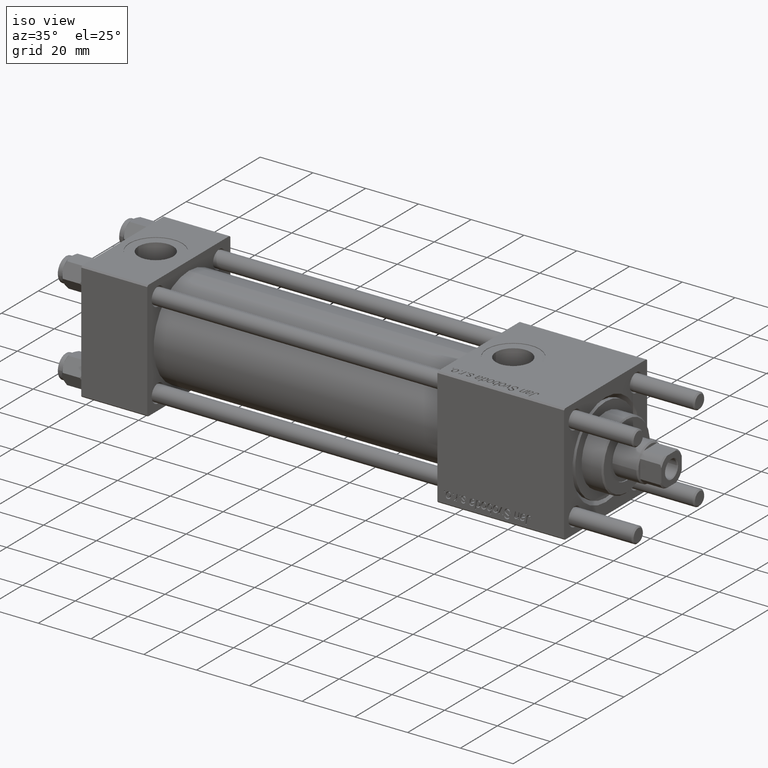
[diagram: clean part render]
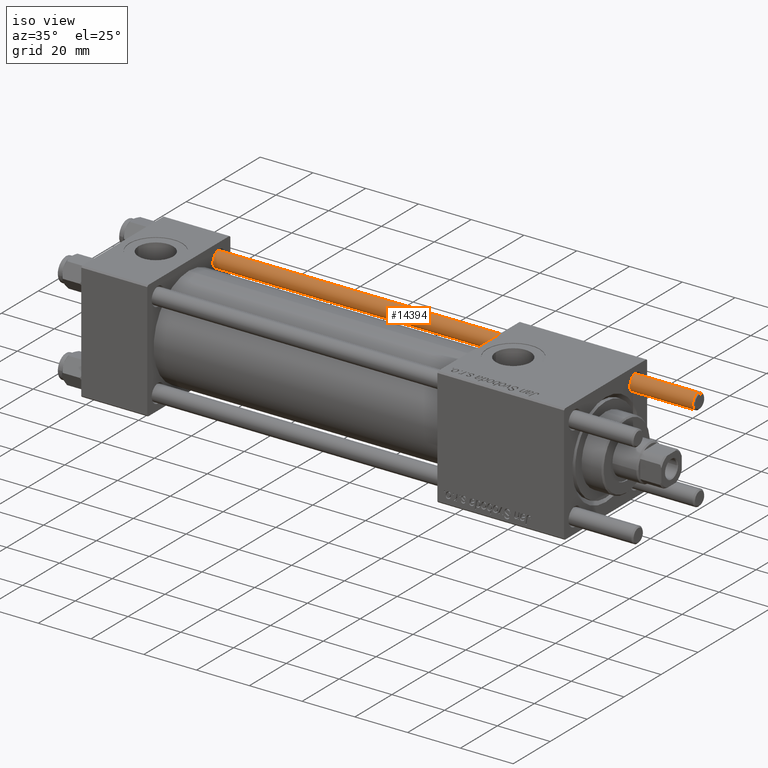
[diagram: same view with one face highlighted and labeled with its STEP entity id]
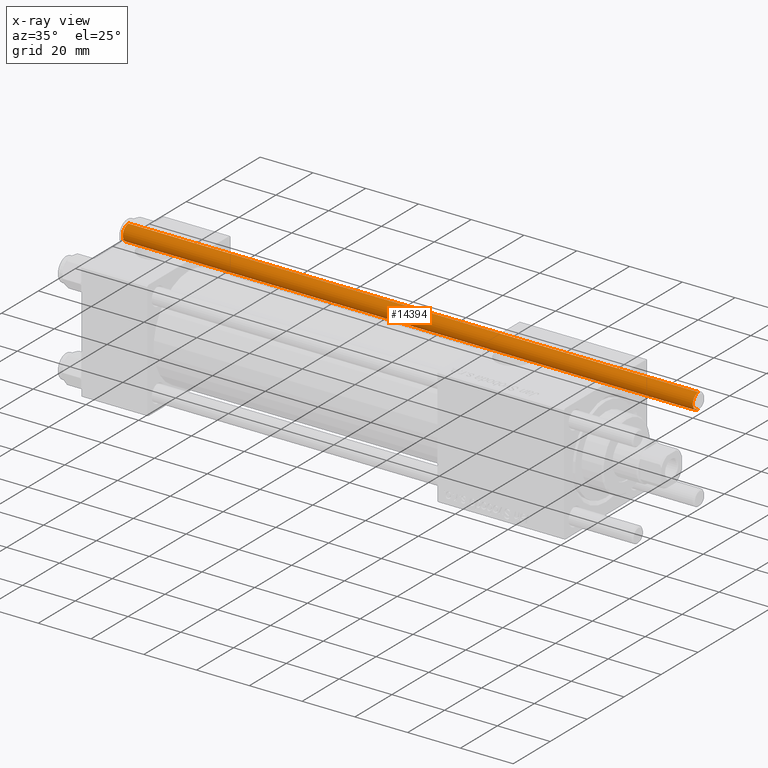
[diagram: x-ray of the same camera — body ghosted, the highlighted face saturated]
A machine part, iso view. The second image highlights one B-rep face of the part: STEP entity #14394.
The next image is the same camera in x-ray: the body ghosted, the highlighted face saturated — about 0% of this face is hidden behind the body in this view.
In plain terms, the highlighted cylindrical surface (edge-blend (fillet) strip) has radius 3 mm, axis along (1, -0, -0).
Its self-contained STEP definition (entity closure, byte-faithful):
#264 = DIRECTION ( 'NONE',  ( 1.000000000000000000, 0.000000000000000000, 0.000000000000000000 ) ) ;
#1710 = CIRCLE ( 'NONE', #30192, 3.000000000000000444 ) ;
#5540 = VERTEX_POINT ( 'NONE', #9105 ) ;
#5638 = ORIENTED_EDGE ( 'NONE', *, *, #36432, .F. ) ;
#6066 = LINE ( 'NONE', #6347, #44930 ) ;
#6345 = CIRCLE ( 'NONE', #21033, 3.000000000000000444 ) ;
#6347 = CARTESIAN_POINT ( 'NONE',  ( -3.000000000000000444, 0.000000000000000000, 217.0000000000000000 ) ) ;
#7325 = ORIENTED_EDGE ( 'NONE', *, *, #8871, .T. ) ;
#8207 = CARTESIAN_POINT ( 'NONE',  ( 3.000000000000000444, 3.673940397442060361E-16, 217.0000000000000000 ) ) ;
#8871 = EDGE_CURVE ( 'NONE', #40977, #5540, #1710, .T. ) ;
#9105 = CARTESIAN_POINT ( 'NONE',  ( 3.000000000000000444, 3.673940397442060361E-16, 0.5000000000000559552 ) ) ;
#9441 = VERTEX_POINT ( 'NONE', #12136 ) ;
#9749 = EDGE_CURVE ( 'NONE', #28802, #40977, #6066, .T. ) ;
#10060 = FACE_OUTER_BOUND ( 'NONE', #24594, .T. ) ;
#12136 = CARTESIAN_POINT ( 'NONE',  ( 3.000000000000000444, 3.673940397442060361E-16, 216.5000000000000000 ) ) ;
#12918 = DIRECTION ( 'NONE',  ( -0.000000000000000000, -0.000000000000000000, 1.000000000000000000 ) ) ;
#14394 = ADVANCED_FACE ( 'NONE', ( #10060 ), #37055, .T. ) ;
#14915 = CARTESIAN_POINT ( 'NONE',  ( -3.000000000000000444, 0.000000000000000000, 216.5000000000000000 ) ) ;
#21033 = AXIS2_PLACEMENT_3D ( 'NONE', #36387, #49578, #32352 ) ;
#22993 = ORIENTED_EDGE ( 'NONE', *, *, #9749, .T. ) ;
#24594 = EDGE_LOOP ( 'NONE', ( #5638, #48450, #22993, #7325 ) ) ;
#25756 = DIRECTION ( 'NONE',  ( -0.000000000000000000, -0.000000000000000000, -1.000000000000000000 ) ) ;
#27667 = DIRECTION ( 'NONE',  ( -0.000000000000000000, -0.000000000000000000, -1.000000000000000000 ) ) ;
#28802 = VERTEX_POINT ( 'NONE', #14915 ) ;
#29794 = LINE ( 'NONE', #8207, #50093 ) ;
#30192 = AXIS2_PLACEMENT_3D ( 'NONE', #39658, #12918, #264 ) ;
#32352 = DIRECTION ( 'NONE',  ( 1.000000000000000000, 0.000000000000000000, 0.000000000000000000 ) ) ;
#36231 = CARTESIAN_POINT ( 'NONE',  ( 0.000000000000000000, 0.000000000000000000, 217.0000000000000000 ) ) ;
#36387 = CARTESIAN_POINT ( 'NONE',  ( 0.000000000000000000, 0.000000000000000000, 216.5000000000000000 ) ) ;
#36432 = EDGE_CURVE ( 'NONE', #9441, #5540, #29794, .T. ) ;
#37055 = CYLINDRICAL_SURFACE ( 'NONE', #52367, 3.000000000000000444 ) ;
#39658 = CARTESIAN_POINT ( 'NONE',  ( 0.000000000000000000, 0.000000000000000000, 0.5000000000000559552 ) ) ;
#40977 = VERTEX_POINT ( 'NONE', #52170 ) ;
#41647 = DIRECTION ( 'NONE',  ( -0.000000000000000000, -0.000000000000000000, -1.000000000000000000 ) ) ;
#44930 = VECTOR ( 'NONE', #27667, 1000.000000000000000 ) ;
#48450 = ORIENTED_EDGE ( 'NONE', *, *, #51827, .T. ) ;
#49578 = DIRECTION ( 'NONE',  ( 0.000000000000000000, 0.000000000000000000, -1.000000000000000000 ) ) ;
#50093 = VECTOR ( 'NONE', #25756, 1000.000000000000000 ) ;
#51827 = EDGE_CURVE ( 'NONE', #9441, #28802, #6345, .T. ) ;
#52170 = CARTESIAN_POINT ( 'NONE',  ( -3.000000000000000444, 0.000000000000000000, 0.5000000000000559552 ) ) ;
#52367 = AXIS2_PLACEMENT_3D ( 'NONE', #36231, #41647, #54554 ) ;
#54554 = DIRECTION ( 'NONE',  ( -1.000000000000000000, 0.000000000000000000, 0.000000000000000000 ) ) ;